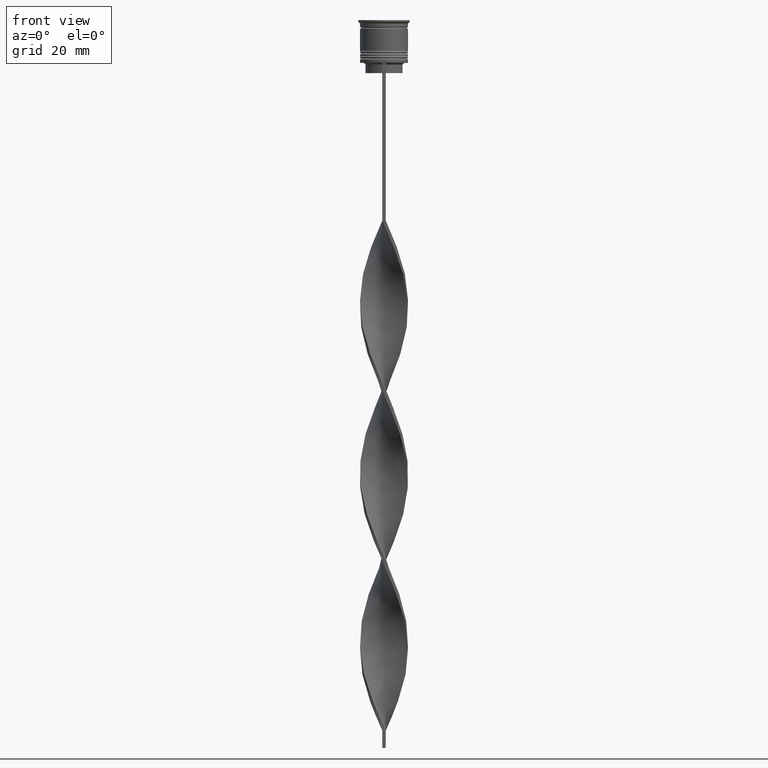
[diagram: clean part render]
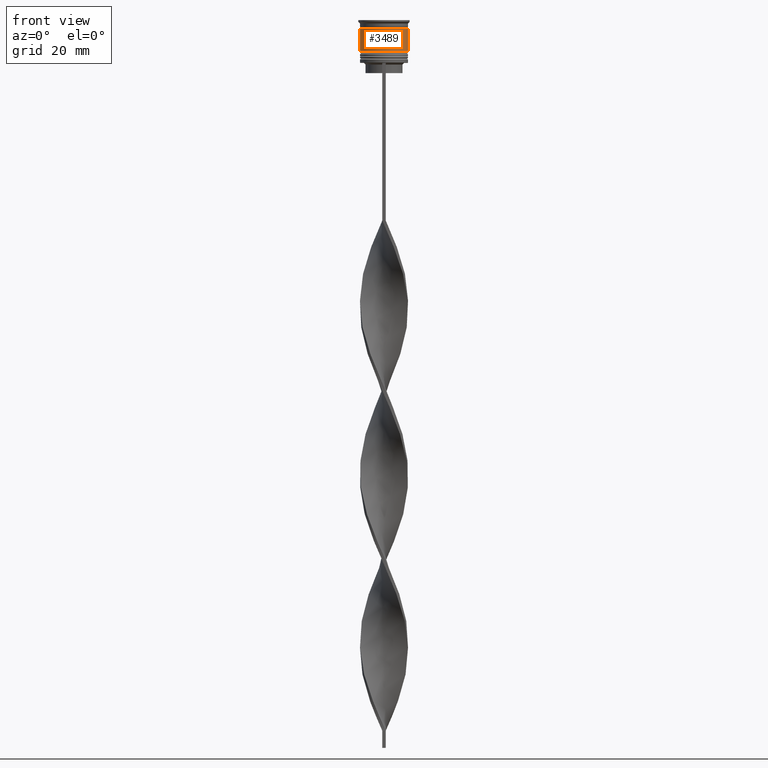
[diagram: same view with one face highlighted and labeled with its STEP entity id]
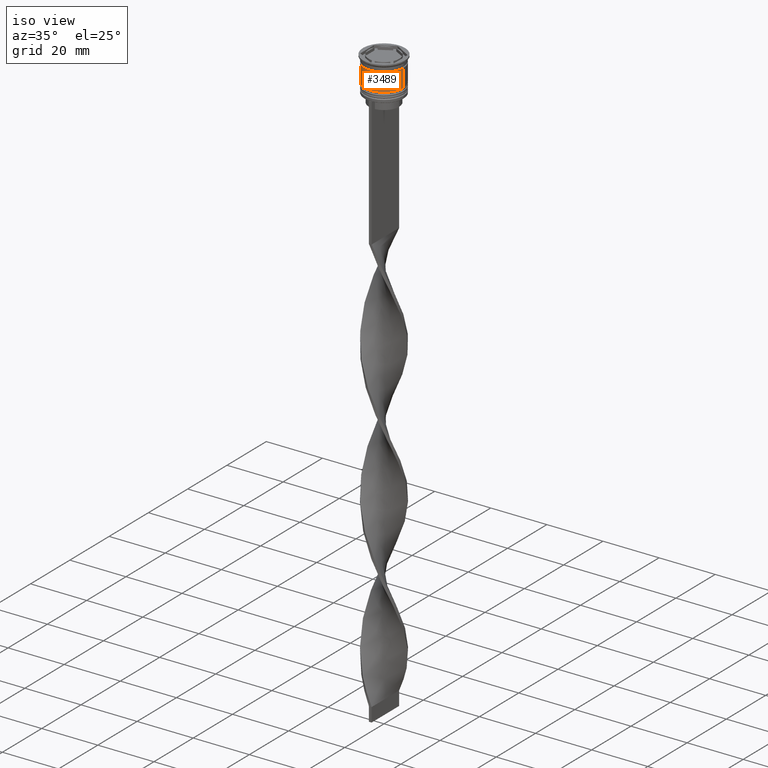
[diagram: same view with one face highlighted and labeled with its STEP entity id]
A machine part, front view. The second image highlights one B-rep face of the part: STEP entity #3489.
A second angle (iso view) of the same face is appended — the face is thin or edge-on in the first view.
In plain terms, the highlighted cylindrical surface (edge-blend (fillet) strip) has radius 7 mm, axis along (-0, -0, 1).
Its self-contained STEP definition (entity closure, byte-faithful):
#32 = DIRECTION ( 'NONE',  ( -0.000000000000000000, -0.000000000000000000, 1.000000000000000000 ) ) ;
#169 = CARTESIAN_POINT ( 'NONE',  ( 0.000000000000000000, 0.000000000000000000, -9.000000000000001776 ) ) ;
#207 = AXIS2_PLACEMENT_3D ( 'NONE', #2884, #2861, #3178 ) ;
#216 = DIRECTION ( 'NONE',  ( -0.000000000000000000, -0.000000000000000000, 1.000000000000000000 ) ) ;
#372 = DIRECTION ( 'NONE',  ( 1.000000000000000000, 0.000000000000000000, 0.000000000000000000 ) ) ;
#417 = VERTEX_POINT ( 'NONE', #969 ) ;
#508 = AXIS2_PLACEMENT_3D ( 'NONE', #169, #216, #2299 ) ;
#684 = EDGE_CURVE ( 'NONE', #1193, #417, #2196, .T. ) ;
#831 = AXIS2_PLACEMENT_3D ( 'NONE', #2805, #1553, #372 ) ;
#849 = CARTESIAN_POINT ( 'NONE',  ( -7.000000000000000888, 8.572527594031474176E-16, -9.000000000000001776 ) ) ;
#969 = CARTESIAN_POINT ( 'NONE',  ( 7.000000000000000888, 0.000000000000000000, -9.000000000000001776 ) ) ;
#971 = CARTESIAN_POINT ( 'NONE',  ( 6.999999999999999112, 0.000000000000000000, 0.000000000000000000 ) ) ;
#1011 = CYLINDRICAL_SURFACE ( 'NONE', #207, 6.999999999999999112 ) ;
#1096 = FACE_OUTER_BOUND ( 'NONE', #2943, .T. ) ;
#1193 = VERTEX_POINT ( 'NONE', #849 ) ;
#1261 = VECTOR ( 'NONE', #3075, 1000.000000000000000 ) ;
#1333 = ORIENTED_EDGE ( 'NONE', *, *, #1704, .T. ) ;
#1553 = DIRECTION ( 'NONE',  ( -0.000000000000000000, -0.000000000000000000, 1.000000000000000000 ) ) ;
#1704 = EDGE_CURVE ( 'NONE', #417, #1866, #3113, .T. ) ;
#1866 = VERTEX_POINT ( 'NONE', #2836 ) ;
#2141 = VERTEX_POINT ( 'NONE', #3621 ) ;
#2178 = EDGE_CURVE ( 'NONE', #1193, #2141, #2358, .T. ) ;
#2196 = CIRCLE ( 'NONE', #508, 7.000000000000000888 ) ;
#2299 = DIRECTION ( 'NONE',  ( 1.000000000000000000, 0.000000000000000000, 0.000000000000000000 ) ) ;
#2358 = LINE ( 'NONE', #3300, #2710 ) ;
#2425 = EDGE_CURVE ( 'NONE', #2141, #1866, #3708, .T. ) ;
#2710 = VECTOR ( 'NONE', #32, 1000.000000000000000 ) ;
#2805 = CARTESIAN_POINT ( 'NONE',  ( 0.000000000000000000, 0.000000000000000000, -2.500000000000000444 ) ) ;
#2836 = CARTESIAN_POINT ( 'NONE',  ( 6.999999999999997335, 0.000000000000000000, -2.500000000000000444 ) ) ;
#2861 = DIRECTION ( 'NONE',  ( -0.000000000000000000, -0.000000000000000000, 1.000000000000000000 ) ) ;
#2884 = CARTESIAN_POINT ( 'NONE',  ( 0.000000000000000000, 0.000000000000000000, 0.000000000000000000 ) ) ;
#2943 = EDGE_LOOP ( 'NONE', ( #3574, #3620, #1333, #2977 ) ) ;
#2977 = ORIENTED_EDGE ( 'NONE', *, *, #2425, .F. ) ;
#3075 = DIRECTION ( 'NONE',  ( -0.000000000000000000, -0.000000000000000000, 1.000000000000000000 ) ) ;
#3113 = LINE ( 'NONE', #971, #1261 ) ;
#3178 = DIRECTION ( 'NONE',  ( 1.000000000000000000, 0.000000000000000000, 0.000000000000000000 ) ) ;
#3300 = CARTESIAN_POINT ( 'NONE',  ( -6.999999999999999112, 8.572527594031472204E-16, 0.000000000000000000 ) ) ;
#3489 = ADVANCED_FACE ( 'NONE', ( #1096 ), #1011, .T. ) ;
#3574 = ORIENTED_EDGE ( 'NONE', *, *, #2178, .F. ) ;
#3620 = ORIENTED_EDGE ( 'NONE', *, *, #684, .T. ) ;
#3621 = CARTESIAN_POINT ( 'NONE',  ( -6.999999999999997335, 8.572527594031471218E-16, -2.500000000000000444 ) ) ;
#3708 = CIRCLE ( 'NONE', #831, 6.999999999999997335 ) ;